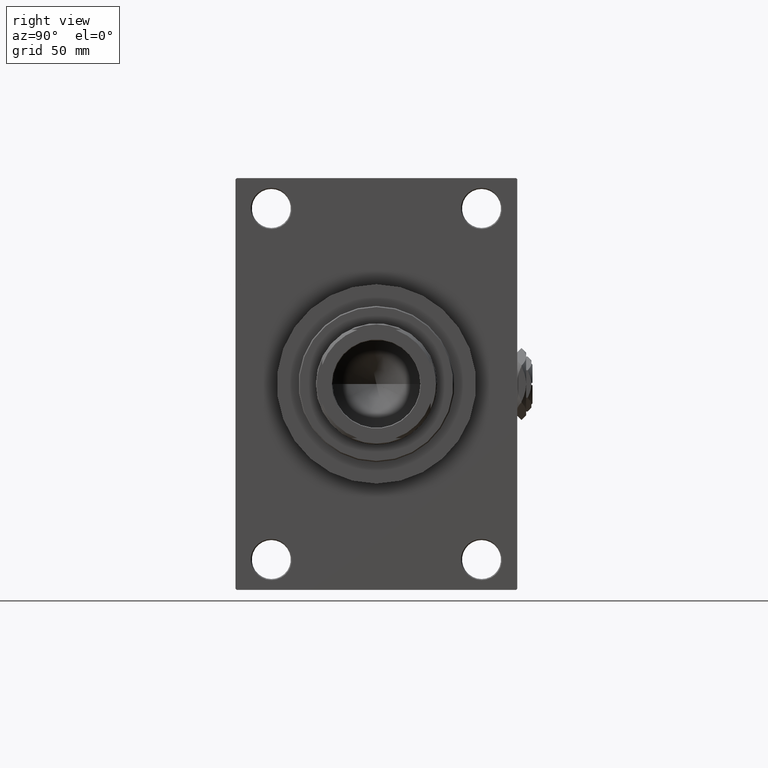
[diagram: clean part render]
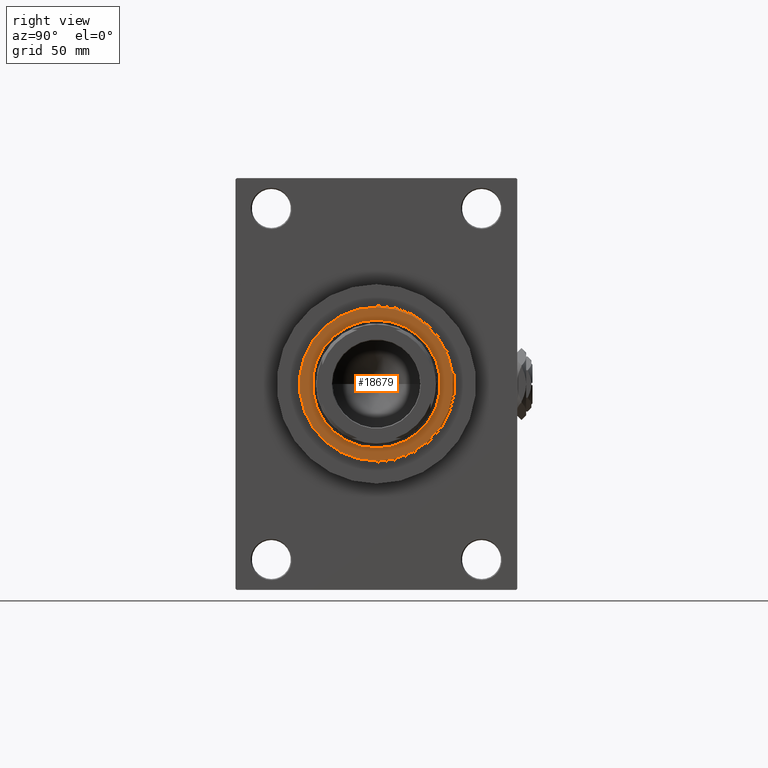
[diagram: same view with one face highlighted and labeled with its STEP entity id]
A machine part, right view. The second image highlights one B-rep face of the part: STEP entity #18679.
In plain terms, the highlighted planar face has unit normal (1, -0, -0).
Its self-contained STEP definition (entity closure, byte-faithful):
#321 = ORIENTED_EDGE ( 'NONE', *, *, #48164, .T. ) ;
#2137 = CARTESIAN_POINT ( 'NONE',  ( 0.000000000000000000, 0.000000000000000000, 53.26000000000000512 ) ) ;
#3134 = DIRECTION ( 'NONE',  ( 0.000000000000000000, 0.000000000000000000, 1.000000000000000000 ) ) ;
#3747 = CARTESIAN_POINT ( 'NONE',  ( 0.000000000000000000, 0.000000000000000000, 53.26000000000000512 ) ) ;
#3866 = AXIS2_PLACEMENT_3D ( 'NONE', #7584, #17941, #25743 ) ;
#7584 = CARTESIAN_POINT ( 'NONE',  ( 0.000000000000000000, 0.000000000000000000, 53.26000000000000512 ) ) ;
#8068 = CIRCLE ( 'NONE', #41065, 35.50000000000001421 ) ;
#8427 = DIRECTION ( 'NONE',  ( 0.000000000000000000, 0.000000000000000000, 1.000000000000000000 ) ) ;
#8683 = EDGE_CURVE ( 'NONE', #23533, #17749, #13329, .T. ) ;
#10441 = EDGE_CURVE ( 'NONE', #36994, #47462, #15022, .T. ) ;
#11343 = DIRECTION ( 'NONE',  ( 1.000000000000000000, 0.000000000000000000, 0.000000000000000000 ) ) ;
#13329 = CIRCLE ( 'NONE', #47938, 29.50000000000000355 ) ;
#14014 = DIRECTION ( 'NONE',  ( 1.000000000000000000, 0.000000000000000000, 0.000000000000000000 ) ) ;
#14915 = ORIENTED_EDGE ( 'NONE', *, *, #10441, .T. ) ;
#15022 = CIRCLE ( 'NONE', #20628, 35.50000000000001421 ) ;
#17749 = VERTEX_POINT ( 'NONE', #46377 ) ;
#17941 = DIRECTION ( 'NONE',  ( 0.000000000000000000, 0.000000000000000000, 1.000000000000000000 ) ) ;
#18679 = ADVANCED_FACE ( 'NONE', ( #42105, #21958 ), #38312, .T. ) ;
#19138 = DIRECTION ( 'NONE',  ( 0.000000000000000000, 0.000000000000000000, 1.000000000000000000 ) ) ;
#20084 = CARTESIAN_POINT ( 'NONE',  ( 35.50000000000001421, 4.378112306951788646E-15, 53.26000000000000512 ) ) ;
#20628 = AXIS2_PLACEMENT_3D ( 'NONE', #46006, #8427, #23789 ) ;
#21958 = FACE_OUTER_BOUND ( 'NONE', #28899, .T. ) ;
#22938 = ORIENTED_EDGE ( 'NONE', *, *, #8683, .F. ) ;
#23533 = VERTEX_POINT ( 'NONE', #35123 ) ;
#23789 = DIRECTION ( 'NONE',  ( 1.000000000000000000, 0.000000000000000000, 0.000000000000000000 ) ) ;
#25743 = DIRECTION ( 'NONE',  ( 1.000000000000000000, 0.000000000000000000, -0.000000000000000000 ) ) ;
#26791 = CARTESIAN_POINT ( 'NONE',  ( 0.000000000000000000, 0.000000000000000000, 53.26000000000000512 ) ) ;
#28135 = AXIS2_PLACEMENT_3D ( 'NONE', #3747, #19138, #11343 ) ;
#28899 = EDGE_LOOP ( 'NONE', ( #321, #14915 ) ) ;
#35123 = CARTESIAN_POINT ( 'NONE',  ( -29.50000000000000355, 3.612708057484692393E-15, 53.26000000000000512 ) ) ;
#36994 = VERTEX_POINT ( 'NONE', #20084 ) ;
#37562 = ORIENTED_EDGE ( 'NONE', *, *, #49649, .F. ) ;
#38312 = PLANE ( 'NONE',  #3866 ) ;
#40524 = CARTESIAN_POINT ( 'NONE',  ( -35.50000000000001421, 0.000000000000000000, 53.26000000000000512 ) ) ;
#41065 = AXIS2_PLACEMENT_3D ( 'NONE', #26791, #41687, #45457 ) ;
#41687 = DIRECTION ( 'NONE',  ( 0.000000000000000000, 0.000000000000000000, 1.000000000000000000 ) ) ;
#41919 = CIRCLE ( 'NONE', #28135, 29.50000000000000355 ) ;
#42105 = FACE_BOUND ( 'NONE', #49318, .T. ) ;
#45457 = DIRECTION ( 'NONE',  ( 1.000000000000000000, 0.000000000000000000, 0.000000000000000000 ) ) ;
#46006 = CARTESIAN_POINT ( 'NONE',  ( 0.000000000000000000, 0.000000000000000000, 53.26000000000000512 ) ) ;
#46377 = CARTESIAN_POINT ( 'NONE',  ( 29.50000000000000355, 0.000000000000000000, 53.26000000000000512 ) ) ;
#47462 = VERTEX_POINT ( 'NONE', #40524 ) ;
#47938 = AXIS2_PLACEMENT_3D ( 'NONE', #2137, #3134, #14014 ) ;
#48164 = EDGE_CURVE ( 'NONE', #47462, #36994, #8068, .T. ) ;
#49318 = EDGE_LOOP ( 'NONE', ( #37562, #22938 ) ) ;
#49649 = EDGE_CURVE ( 'NONE', #17749, #23533, #41919, .T. ) ;